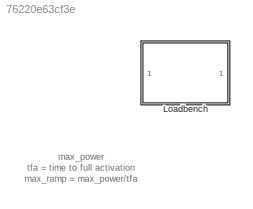
MODEL slx_76220e63cf3e
KIND model
CONFIG AbsTol = auto
CONFIG EnableMultiTasking = off
CONFIG FixedStep = auto
CONFIG MaxStep = auto
CONFIG MinStep = auto
CONFIG RelTol = 1e-3
CONFIG SampleTimeConstraint = Unconstrained
CONFIG SolverName = VariableStepAuto
CONFIG StartTime = 0.0
CONFIG StopTime = 50
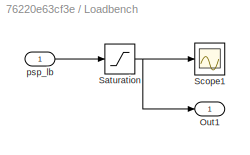
BLOCK [SubSystem] Loadbench
  Ports = [1, 1]
  RequestExecContextInheritance = off
BLOCK [Outport] Loadbench/Out1
BLOCK [Saturate] Loadbench/Saturation
  LowerLimit = -p_max_lb
  UpperLimit = 0
BLOCK [Scope] Loadbench/Scope1
  Floating = off
  NumInputPorts = 1
  Ports = [1]
  ScopeSpecificationString = Simulink.scopes.TimeScopeBlockCfg('CurrentConfiguration', extmgr.ConfigurationSet(extmgr.Configuration('Core','General UI',true),extmgr.Configuration('Core','Source UI',true),extmgr.Configuration('Sources','WiredSimulink',true,'DataLoggingVariableName','ScopeData1'),extmgr.Configuration('Visuals','Time Domain',true,'SerializedDisplays',{struct('MinYLimReal','-1.875','MaxYLimReal','16.875','YLabelR...<+1420ch>
BLOCK [Inport] Loadbench/psp_lb
ANNOTATION (root): max_power tfa = time to full activation max_ramp = max_power/tfa
NET Loadbench/Saturation:1 -> Loadbench/Out1:1, Loadbench/Scope1:1
LINE Loadbench/psp_lb:1 -> Loadbench/Saturation:1
note: NET lines group one-source signal fan-out (src -> all destinations, sorted); 1:1 wires keep LINE
